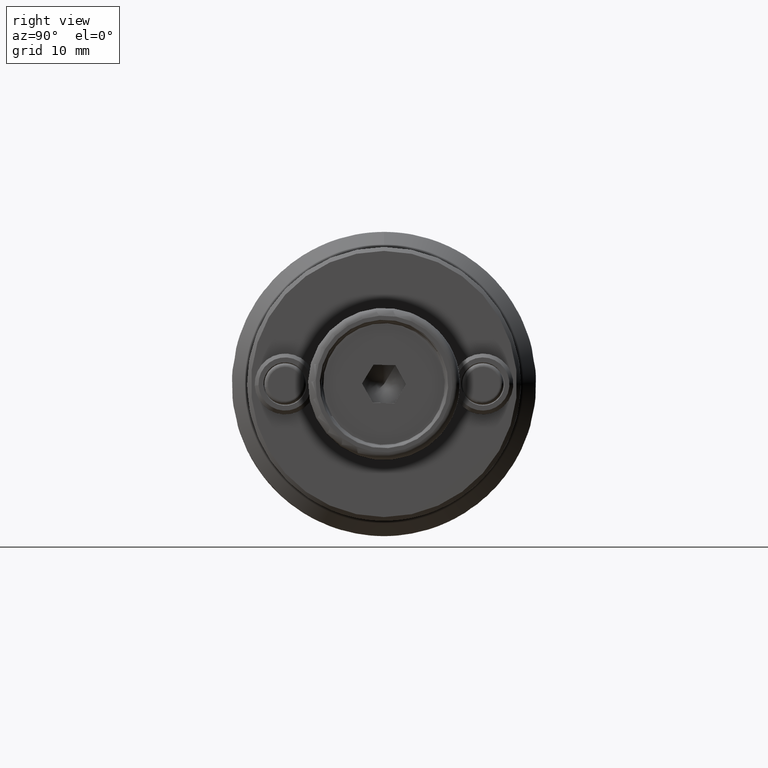
[diagram: clean part render]
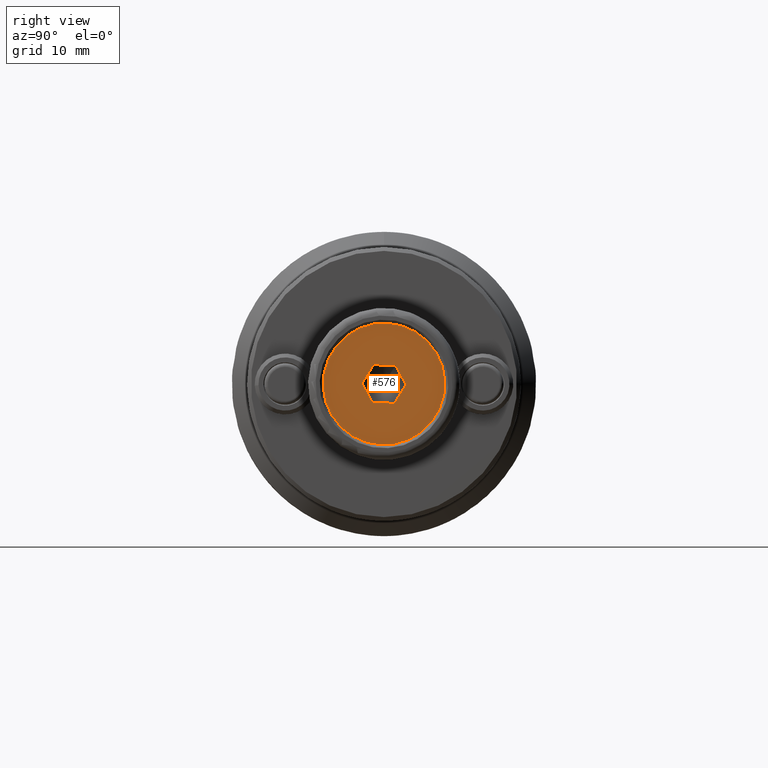
[diagram: same view with one face highlighted and labeled with its STEP entity id]
A machine part, right view. The second image highlights one B-rep face of the part: STEP entity #576.
In plain terms, the highlighted planar face has unit normal (-1, -0, 0).
Its self-contained STEP definition (entity closure, byte-faithful):
#576 = ADVANCED_FACE( '204:PI1#E3', ( #1206, #1207 ), #1208, .F. );
#1206 = FACE_OUTER_BOUND( '', #1877, .T. );
#1207 = FACE_BOUND( '', #1878, .T. );
#1208 = PLANE( '', #1879 );
#1877 = EDGE_LOOP( '', ( #2992 ) );
#1878 = EDGE_LOOP( '', ( #2993, #2994, #2995, #2996, #2997, #2998 ) );
#1879 = AXIS2_PLACEMENT_3D( '', #2999, #3000, #3001 );
#2992 = ORIENTED_EDGE( '', *, *, #3787, .T. );
#2993 = ORIENTED_EDGE( '', *, *, #3788, .T. );
#2994 = ORIENTED_EDGE( '', *, *, #3789, .T. );
#2995 = ORIENTED_EDGE( '', *, *, #3660, .T. );
#2996 = ORIENTED_EDGE( '', *, *, #3485, .T. );
#2997 = ORIENTED_EDGE( '', *, *, #3481, .T. );
#2998 = ORIENTED_EDGE( '', *, *, #3790, .T. );
#2999 = CARTESIAN_POINT( '', ( -2.99932144364427E-032, 8.00000000000000, 4.89842541528951E-016 ) );
#3000 = DIRECTION( '', ( 6.12303176911189E-017, 0.000000000000000, -1.00000000000000 ) );
#3001 = DIRECTION( '', ( -1.00000000000000, 0.000000000000000, -6.12303176911189E-017 ) );
#3481 = EDGE_CURVE( '210:PI1#E39', #4021, #4025, #4027, .T. );
#3485 = EDGE_CURVE( '209:PI1#E32', #4030, #4021, #4033, .T. );
#3660 = EDGE_CURVE( '208:PI1#E25', #4303, #4030, #4306, .T. );
#3787 = EDGE_CURVE( '205:PI1#E4', #4476, #4476, #4477, .T. );
#3788 = EDGE_CURVE( '206:PI1#E11', #4478, #4479, #4480, .T. );
#3789 = EDGE_CURVE( '207:PI1#E18', #4479, #4303, #4481, .T. );
#3790 = EDGE_CURVE( '211:PI1#E46', #4025, #4478, #4482, .T. );
#4021 = VERTEX_POINT( '', #4979 );
#4025 = VERTEX_POINT( '', #4991 );
#4027 = LINE( '', #4994, #4995 );
#4030 = VERTEX_POINT( '', #4998 );
#4033 = LINE( '', #5009, #5010 );
#4303 = VERTEX_POINT( '', #5528 );
#4306 = LINE( '', #5541, #5542 );
#4476 = VERTEX_POINT( '', #5897 );
#4477 = CIRCLE( '', #5898, 8.00000000000000 );
#4478 = VERTEX_POINT( '', #5899 );
#4479 = VERTEX_POINT( '', #5900 );
#4480 = LINE( '', #5901, #5902 );
#4481 = LINE( '', #5903, #5904 );
#4482 = LINE( '', #5905, #5906 );
#4979 = CARTESIAN_POINT( '', ( -2.88675000000000, 8.32667268468867E-016, -1.76756619594838E-016 ) );
#4991 = CARTESIAN_POINT( '', ( -1.44337500000000, 2.49999883437473, -8.83783097974187E-017 ) );
#4994 = CARTESIAN_POINT( '', ( -2.88675000000000, -3.53513239189675E-016, -1.76756619594838E-016 ) );
#4995 = VECTOR( '', #6185, 1000.00000000000 );
#4998 = CARTESIAN_POINT( '', ( -1.44337500000000, -2.49999883437473, -8.83783097974187E-017 ) );
#5009 = CARTESIAN_POINT( '', ( -1.44337500000000, -2.49999883437473, -8.83783097974187E-017 ) );
#5010 = VECTOR( '', #6187, 1000.00000000000 );
#5528 = CARTESIAN_POINT( '', ( 1.44337500000000, -2.49999883437473, 8.83783097974187E-017 ) );
#5541 = CARTESIAN_POINT( '', ( 1.44337500000000, -2.49999883437473, 8.83783097974187E-017 ) );
#5542 = VECTOR( '', #6410, 1000.00000000000 );
#5897 = CARTESIAN_POINT( '', ( 8.00000000000000, 0.000000000000000, 9.75565114802457E-016 ) );
#5898 = AXIS2_PLACEMENT_3D( '', #6542, #6543, #6544 );
#5899 = CARTESIAN_POINT( '', ( 1.44337500000000, 2.49999883437473, 5.78220851326369E-016 ) );
#5900 = CARTESIAN_POINT( '', ( 2.88675000000000, 0.000000000000000, 1.76756619594838E-016 ) );
#5901 = CARTESIAN_POINT( '', ( 1.44337500000000, 2.49999883437473, 8.83783097974186E-017 ) );
#5902 = VECTOR( '', #6545, 1000.00000000000 );
#5903 = CARTESIAN_POINT( '', ( 2.88675000000000, 0.000000000000000, 1.76756619594838E-016 ) );
#5904 = VECTOR( '', #6546, 1000.00000000000 );
#5905 = CARTESIAN_POINT( '', ( -1.44337500000000, 2.49999883437473, -8.83783097974188E-017 ) );
#5906 = VECTOR( '', #6547, 1000.00000000000 );
#6185 = DIRECTION( '', ( 0.500000000000000, 0.866025403784439, 3.06151588455594E-017 ) );
#6187 = DIRECTION( '', ( -0.500000000000000, 0.866025403784439, -3.06151588455594E-017 ) );
#6410 = DIRECTION( '', ( -1.00000000000000, -1.92296358296555E-016, -6.12303176911189E-017 ) );
#6542 = CARTESIAN_POINT( '', ( -2.97409474712845E-032, 0.000000000000000, 4.85722573273506E-016 ) );
#6543 = DIRECTION( '', ( -6.12303176911189E-017, 0.000000000000000, 1.00000000000000 ) );
#6544 = DIRECTION( '', ( 1.00000000000000, 0.000000000000000, 6.12303176911189E-017 ) );
#6545 = DIRECTION( '', ( 0.500000000000000, -0.866025403784439, 3.06151588455594E-017 ) );
#6546 = DIRECTION( '', ( -0.500000000000000, -0.866025403784439, -3.06151588455594E-017 ) );
#6547 = DIRECTION( '', ( 1.00000000000000, 5.76889074889663E-016, 6.12303176911189E-017 ) );